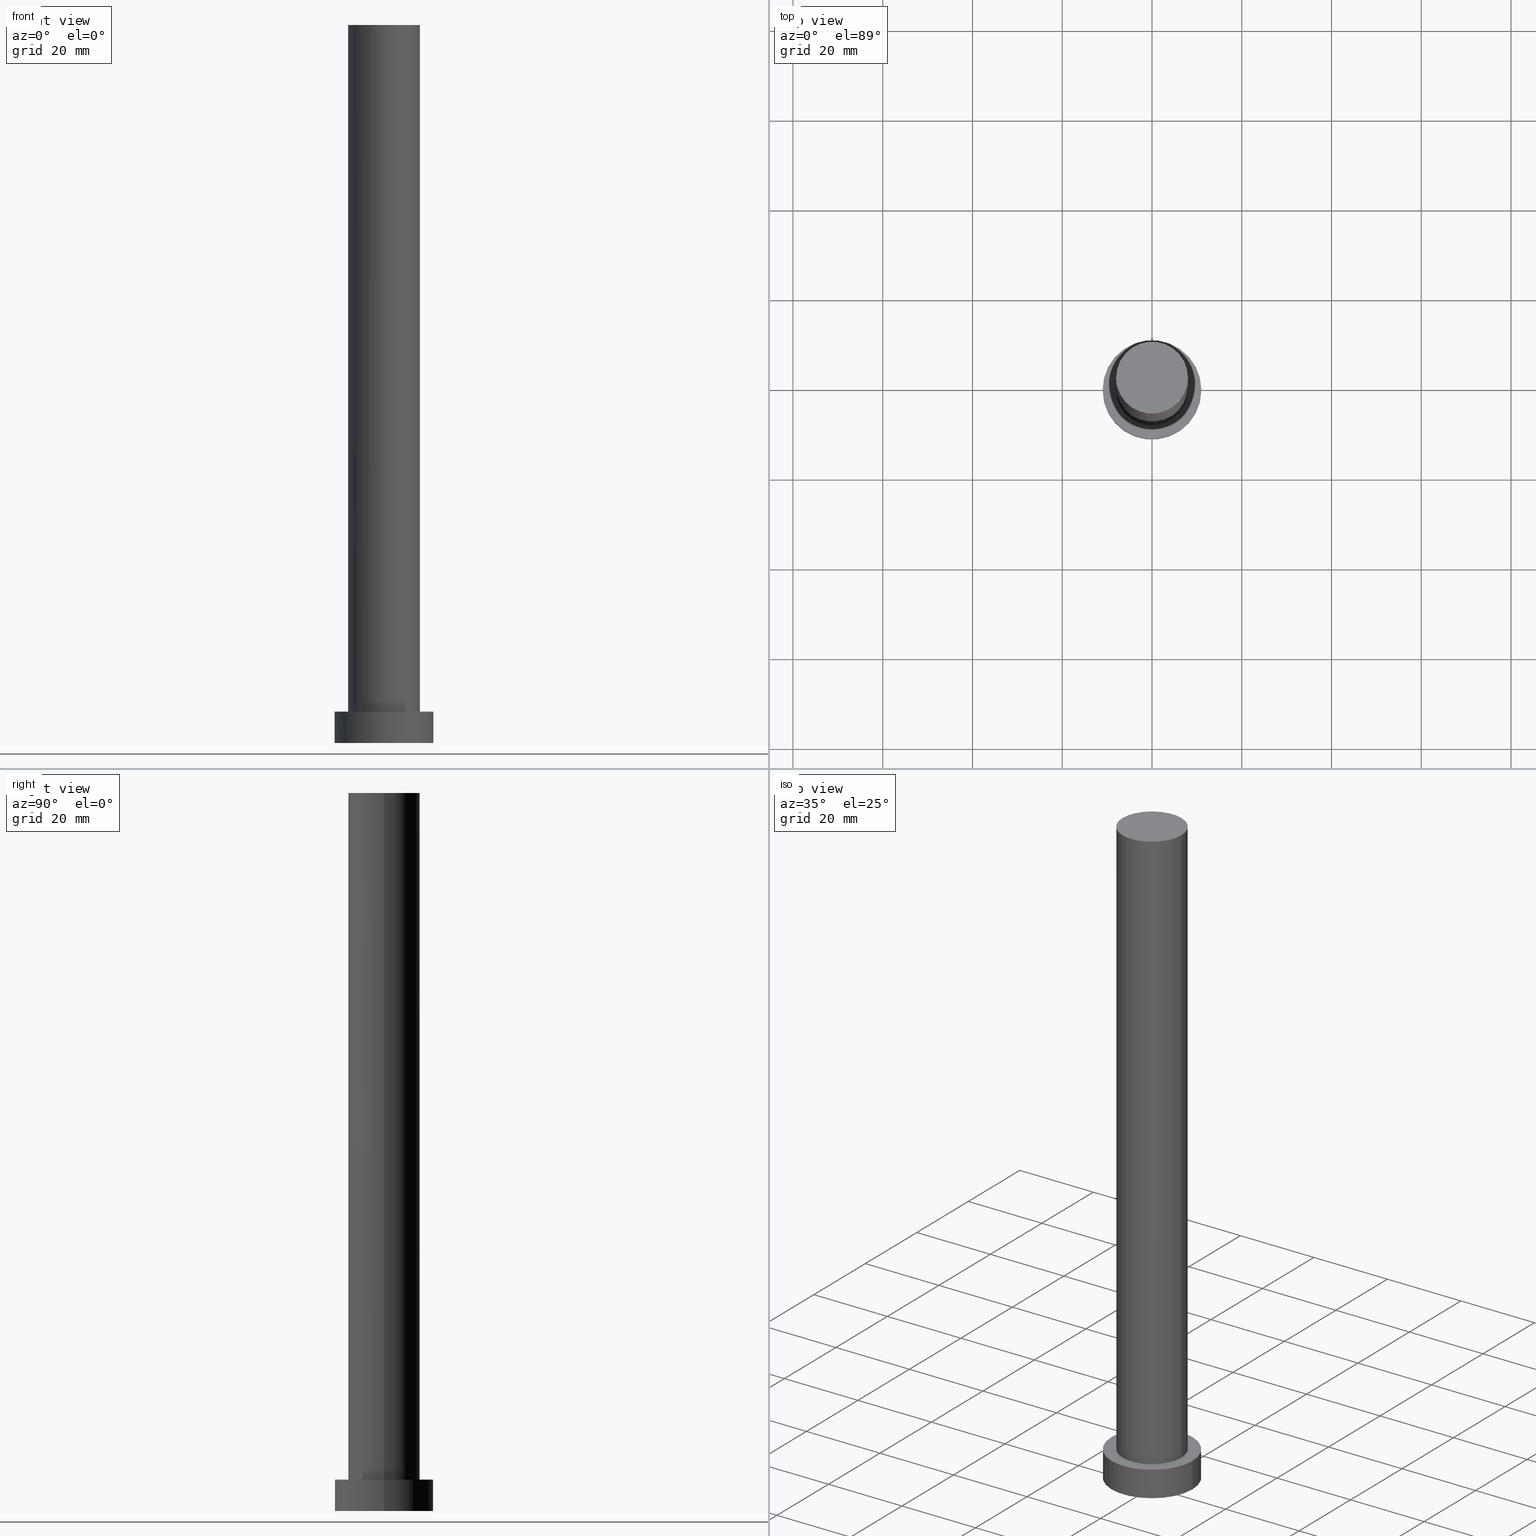
[diagram: canonical four-view strip — front | top / right | iso, engineering-drawing reading convention]
A machine part, canonical four-view strip (front | top / right | iso — engineering-drawing reading convention). The complete STEP part file that produces these views, byte-faithful:
ISO-10303-21;
HEADER;
FILE_DESCRIPTION (( 'STEP AP203' ),
    '1' );
FILE_NAME ('c0d8.STEP',
    '2023-02-13T09:47:08',
    ( '' ),
    ( '' ),
    'SwSTEP 2.0',
    'SolidWorks 2019',
    '' );
FILE_SCHEMA (( 'CONFIG_CONTROL_DESIGN' ));
ENDSEC;

DATA;
#1 = FACE_OUTER_BOUND ( 'NONE', #85, .T. ) ;
#2 = SHAPE_DEFINITION_REPRESENTATION ( #31, #119 ) ;
#3 = CC_DESIGN_PERSON_AND_ORGANIZATION_ASSIGNMENT ( #233, #58, ( #149 ) ) ;
#4 = PERSON ( 'NEUR�EN�', 'NEUR�EN�', 'NEUR�EN�', ('NEUR�EN�'), ('NEUR�EN�'), ('NEUR�EN�') ) ;
#5 = EDGE_LOOP ( 'NONE', ( #187, #24, #240, #76 ) ) ;
#6 = FACE_BOUND ( 'NONE', #107, .T. ) ;
#7 = DIRECTION ( 'NONE',  ( 1.000000000000000000, 0.000000000000000000, -0.000000000000000000 ) ) ;
#8 = PERSON_AND_ORGANIZATION ( #4, #137 ) ;
#9 = ORIENTED_EDGE ( 'NONE', *, *, #139, .F. ) ;
#10 = CYLINDRICAL_SURFACE ( 'NONE', #83, 8.000000000000000000 ) ;
#11 = DIRECTION ( 'NONE',  ( 1.000000000000000000, 0.000000000000000000, 0.000000000000000000 ) ) ;
#12 = CARTESIAN_POINT ( 'NONE',  ( 0.000000000000000000, 0.000000000000000000, 160.0000000000000000 ) ) ;
#13 =( NAMED_UNIT ( * ) SI_UNIT ( $, .STERADIAN. ) SOLID_ANGLE_UNIT ( ) );
#14 = CARTESIAN_POINT ( 'NONE',  ( -11.00000000000000000, 0.000000000000000000, 7.000000000000000000 ) ) ;
#15 = CC_DESIGN_APPROVAL ( #172, ( #121 ) ) ;
#16 = PERSON_AND_ORGANIZATION ( #4, #137 ) ;
#17 = DIRECTION ( 'NONE',  ( 0.000000000000000000, 0.000000000000000000, 1.000000000000000000 ) ) ;
#18 = AXIS2_PLACEMENT_3D ( 'NONE', #237, #255, #80 ) ;
#19 = PERSON_AND_ORGANIZATION ( #4, #137 ) ;
#20 = EDGE_CURVE ( 'NONE', #250, #86, #29, .T. ) ;
#21 = VERTEX_POINT ( 'NONE', #93 ) ;
#22 = ORIENTED_EDGE ( 'NONE', *, *, #142, .T. ) ;
#23 = APPROVAL_PERSON_ORGANIZATION ( #33, #221, #170 ) ;
#24 = ORIENTED_EDGE ( 'NONE', *, *, #82, .T. ) ;
#25 = CARTESIAN_POINT ( 'NONE',  ( 0.000000000000000000, 0.000000000000000000, 160.0000000000000000 ) ) ;
#26 = PERSON_AND_ORGANIZATION ( #4, #137 ) ;
#27 = ORIENTED_EDGE ( 'NONE', *, *, #182, .T. ) ;
#28 = ADVANCED_FACE ( 'NONE', ( #132 ), #53, .F. ) ;
#29 = CIRCLE ( 'NONE', #163, 8.000000000000000000 ) ;
#30 = DIRECTION ( 'NONE',  ( 1.000000000000000000, 0.000000000000000000, 0.000000000000000000 ) ) ;
#31 = PRODUCT_DEFINITION_SHAPE ( 'NONE', 'NONE',  #149 ) ;
#32 = VERTEX_POINT ( 'NONE', #69 ) ;
#33 = PERSON_AND_ORGANIZATION ( #4, #137 ) ;
#34 = DIRECTION ( 'NONE',  ( 1.000000000000000000, 0.000000000000000000, 0.000000000000000000 ) ) ;
#35 = EDGE_CURVE ( 'NONE', #199, #21, #222, .T. ) ;
#36 = CARTESIAN_POINT ( 'NONE',  ( 8.000000000000000000, 9.797174393178825657E-16, 160.0000000000000000 ) ) ;
#37 = DIRECTION ( 'NONE',  ( -0.000000000000000000, -0.000000000000000000, -1.000000000000000000 ) ) ;
#38 = VECTOR ( 'NONE', #175, 1000.000000000000000 ) ;
#39 = DATE_TIME_ROLE ( 'classification_date' ) ;
#40 = EDGE_CURVE ( 'NONE', #21, #199, #245, .T. ) ;
#41 = AXIS2_PLACEMENT_3D ( 'NONE', #188, #174, #134 ) ;
#42 = APPROVAL_ROLE ( '' ) ;
#43 = APPROVAL ( #192, 'NEUR�EN�' ) ;
#44 = AXIS2_PLACEMENT_3D ( 'NONE', #108, #229, #212 ) ;
#45 = CIRCLE ( 'NONE', #104, 8.000000000000000000 ) ;
#46 = ADVANCED_FACE ( 'NONE', ( #74 ), #10, .T. ) ;
#47 = EDGE_LOOP ( 'NONE', ( #225, #106 ) ) ;
#48 = DIRECTION ( 'NONE',  ( -0.000000000000000000, -0.000000000000000000, -1.000000000000000000 ) ) ;
#49 = COORDINATED_UNIVERSAL_TIME_OFFSET ( 1, 0, .AHEAD. ) ;
#50 = CC_DESIGN_PERSON_AND_ORGANIZATION_ASSIGNMENT ( #91, #206, ( #87 ) ) ;
#51 = ORIENTED_EDGE ( 'NONE', *, *, #35, .T. ) ;
#52 = COORDINATED_UNIVERSAL_TIME_OFFSET ( 1, 0, .AHEAD. ) ;
#53 = PLANE ( 'NONE',  #200 ) ;
#54 = DIRECTION ( 'NONE',  ( 0.000000000000000000, 0.000000000000000000, 1.000000000000000000 ) ) ;
#55 = DIRECTION ( 'NONE',  ( 1.000000000000000000, 0.000000000000000000, 0.000000000000000000 ) ) ;
#56 = CALENDAR_DATE ( 2023, 13, 2 ) ;
#57 = DIRECTION ( 'NONE',  ( 0.000000000000000000, 0.000000000000000000, 1.000000000000000000 ) ) ;
#58 = PERSON_AND_ORGANIZATION_ROLE ( 'creator' ) ;
#59 = DIRECTION ( 'NONE',  ( 1.000000000000000000, 0.000000000000000000, 0.000000000000000000 ) ) ;
#60 = LINE ( 'NONE', #215, #216 ) ;
#61 = LOCAL_TIME ( 10, 47, 8.000000000000000000, #52 ) ;
#62 = DATE_AND_TIME ( #178, #127 ) ;
#63 = PRODUCT_RELATED_PRODUCT_CATEGORY ( 'detail', '', ( #116 ) ) ;
#64 = CIRCLE ( 'NONE', #18, 11.00000000000000000 ) ;
#65 = VERTEX_POINT ( 'NONE', #207 ) ;
#66 = MANIFOLD_SOLID_BREP ( 'P�idat vysunut�m3', #164 ) ;
#67 = VECTOR ( 'NONE', #48, 1000.000000000000000 ) ;
#68 = ADVANCED_FACE ( 'NONE', ( #6, #185 ), #248, .T. ) ;
#69 = CARTESIAN_POINT ( 'NONE',  ( -11.00000000000000000, 0.000000000000000000, 0.000000000000000000 ) ) ;
#70 = EDGE_LOOP ( 'NONE', ( #161, #209 ) ) ;
#71 = ADVANCED_FACE ( 'NONE', ( #88 ), #191, .T. ) ;
#72 = ORIENTED_EDGE ( 'NONE', *, *, #139, .T. ) ;
#73 = PERSON_AND_ORGANIZATION ( #4, #137 ) ;
#74 = FACE_OUTER_BOUND ( 'NONE', #5, .T. ) ;
#75 =( LENGTH_UNIT ( ) NAMED_UNIT ( * ) SI_UNIT ( .MILLI., .METRE. ) );
#76 = ORIENTED_EDGE ( 'NONE', *, *, #114, .F. ) ;
#77 = CALENDAR_DATE ( 2023, 13, 2 ) ;
#78 = LINE ( 'NONE', #171, #38 ) ;
#79 =( NAMED_UNIT ( * ) PLANE_ANGLE_UNIT ( ) SI_UNIT ( $, .RADIAN. ) );
#80 = DIRECTION ( 'NONE',  ( 1.000000000000000000, 0.000000000000000000, 0.000000000000000000 ) ) ;
#81 = CARTESIAN_POINT ( 'NONE',  ( 11.00000000000000000, 1.347111479062088405E-15, 0.000000000000000000 ) ) ;
#82 = EDGE_CURVE ( 'NONE', #86, #115, #95, .T. ) ;
#83 = AXIS2_PLACEMENT_3D ( 'NONE', #25, #227, #129 ) ;
#84 = DATE_AND_TIME ( #217, #238 ) ;
#85 = EDGE_LOOP ( 'NONE', ( #140, #242, #27, #90 ) ) ;
#86 = VERTEX_POINT ( 'NONE', #36 ) ;
#87 = PRODUCT_DEFINITION_FORMATION_WITH_SPECIFIED_SOURCE ( 'LIBOVOLN�', '', #116, .NOT_KNOWN. ) ;
#88 = FACE_OUTER_BOUND ( 'NONE', #47, .T. ) ;
#89 = ADVANCED_FACE ( 'NONE', ( #1 ), #195, .T. ) ;
#90 = ORIENTED_EDGE ( 'NONE', *, *, #142, .F. ) ;
#91 = PERSON_AND_ORGANIZATION ( #4, #137 ) ;
#92 = APPROVAL_PERSON_ORGANIZATION ( #8, #43, #235 ) ;
#93 = CARTESIAN_POINT ( 'NONE',  ( 11.00000000000000000, 1.347111479062088405E-15, 7.000000000000000000 ) ) ;
#94 = CARTESIAN_POINT ( 'NONE',  ( 0.000000000000000000, 0.000000000000000000, 0.000000000000000000 ) ) ;
#95 = LINE ( 'NONE', #144, #67 ) ;
#96 = APPROVAL_STATUS ( 'not_yet_approved' ) ;
#97 = DESIGN_CONTEXT ( 'detailed design', #102, 'design' ) ;
#98 = DIRECTION ( 'NONE',  ( 0.000000000000000000, 0.000000000000000000, 1.000000000000000000 ) ) ;
#99 = CIRCLE ( 'NONE', #145, 11.00000000000000000 ) ;
#100 = CYLINDRICAL_SURFACE ( 'NONE', #173, 11.00000000000000000 ) ;
#101 = CARTESIAN_POINT ( 'NONE',  ( 0.000000000000000000, 0.000000000000000000, 160.0000000000000000 ) ) ;
#102 = APPLICATION_CONTEXT ( 'configuration controlled 3d designs of mechanical parts and assemblies' ) ;
#103 = LOCAL_TIME ( 10, 47, 8.000000000000000000, #251 ) ;
#104 = AXIS2_PLACEMENT_3D ( 'NONE', #234, #57, #118 ) ;
#105 = EDGE_LOOP ( 'NONE', ( #51, #230 ) ) ;
#106 = ORIENTED_EDGE ( 'NONE', *, *, #196, .T. ) ;
#107 = EDGE_LOOP ( 'NONE', ( #9, #112 ) ) ;
#108 = CARTESIAN_POINT ( 'NONE',  ( 0.000000000000000000, 0.000000000000000000, 7.000000000000000000 ) ) ;
#109 = PERSON_AND_ORGANIZATION_ROLE ( 'design_supplier' ) ;
#110 = ORIENTED_EDGE ( 'NONE', *, *, #114, .T. ) ;
#111 = CARTESIAN_POINT ( 'NONE',  ( -8.000000000000000000, 0.000000000000000000, 160.0000000000000000 ) ) ;
#112 = ORIENTED_EDGE ( 'NONE', *, *, #239, .F. ) ;
#113 = CARTESIAN_POINT ( 'NONE',  ( 0.000000000000000000, 0.000000000000000000, 160.0000000000000000 ) ) ;
#114 = EDGE_CURVE ( 'NONE', #250, #65, #78, .T. ) ;
#115 = VERTEX_POINT ( 'NONE', #176 ) ;
#116 = PRODUCT ( 'c0d8', 'c0d8', '', ( #249 ) ) ;
#117 = CYLINDRICAL_SURFACE ( 'NONE', #179, 8.000000000000000000 ) ;
#118 = DIRECTION ( 'NONE',  ( 1.000000000000000000, 0.000000000000000000, 0.000000000000000000 ) ) ;
#119 = ADVANCED_BREP_SHAPE_REPRESENTATION ( 'c0d8', ( #66, #220 ), #253 ) ;
#120 = CARTESIAN_POINT ( 'NONE',  ( 0.000000000000000000, 0.000000000000000000, 0.000000000000000000 ) ) ;
#121 = SECURITY_CLASSIFICATION ( '', '', #186 ) ;
#122 = LOCAL_TIME ( 10, 47, 8.000000000000000000, #49 ) ;
#123 = APPROVAL_PERSON_ORGANIZATION ( #19, #172, #42 ) ;
#124 = CC_DESIGN_PERSON_AND_ORGANIZATION_ASSIGNMENT ( #26, #109, ( #87 ) ) ;
#125 = CC_DESIGN_DATE_AND_TIME_ASSIGNMENT ( #84, #39, ( #121 ) ) ;
#126 = EDGE_LOOP ( 'NONE', ( #165, #181, #22, #169 ) ) ;
#127 = LOCAL_TIME ( 10, 47, 8.000000000000000000, #177 ) ;
#128 = APPROVAL_DATE_TIME ( #146, #43 ) ;
#129 = DIRECTION ( 'NONE',  ( -1.000000000000000000, 0.000000000000000000, 0.000000000000000000 ) ) ;
#130 = DIRECTION ( 'NONE',  ( -0.000000000000000000, -0.000000000000000000, -1.000000000000000000 ) ) ;
#131 = ORIENTED_EDGE ( 'NONE', *, *, #82, .F. ) ;
#132 = FACE_OUTER_BOUND ( 'NONE', #70, .T. ) ;
#133 = DIRECTION ( 'NONE',  ( -0.000000000000000000, -0.000000000000000000, -1.000000000000000000 ) ) ;
#134 = DIRECTION ( 'NONE',  ( 1.000000000000000000, 0.000000000000000000, 0.000000000000000000 ) ) ;
#135 = DIRECTION ( 'NONE',  ( -0.000000000000000000, -0.000000000000000000, -1.000000000000000000 ) ) ;
#136 = COORDINATED_UNIVERSAL_TIME_OFFSET ( 1, 0, .AHEAD. ) ;
#137 = ORGANIZATION ( 'NEUR�EN�', 'NEUR�EN�', '' ) ;
#138 = FACE_OUTER_BOUND ( 'NONE', #126, .T. ) ;
#139 = EDGE_CURVE ( 'NONE', #65, #115, #45, .T. ) ;
#140 = ORIENTED_EDGE ( 'NONE', *, *, #40, .F. ) ;
#141 = AXIS2_PLACEMENT_3D ( 'NONE', #204, #98, #162 ) ;
#142 = EDGE_CURVE ( 'NONE', #199, #32, #155, .T. ) ;
#143 = EDGE_LOOP ( 'NONE', ( #131, #243, #110, #72 ) ) ;
#144 = CARTESIAN_POINT ( 'NONE',  ( 8.000000000000000000, 9.797174393178825657E-16, 160.0000000000000000 ) ) ;
#145 = AXIS2_PLACEMENT_3D ( 'NONE', #120, #17, #30 ) ;
#146 = DATE_AND_TIME ( #244, #61 ) ;
#147 = DIRECTION ( 'NONE',  ( 0.000000000000000000, 0.000000000000000000, 1.000000000000000000 ) ) ;
#148 = APPLICATION_PROTOCOL_DEFINITION ( 'international standard', 'config_control_design', 1994, #201 ) ;
#149 = PRODUCT_DEFINITION ( 'NEZN�M�', '', #87, #97 ) ;
#150 = VERTEX_POINT ( 'NONE', #81 ) ;
#151 = DIRECTION ( 'NONE',  ( 0.000000000000000000, 0.000000000000000000, 1.000000000000000000 ) ) ;
#152 = AXIS2_PLACEMENT_3D ( 'NONE', #223, #151, #34 ) ;
#153 = DATE_AND_TIME ( #77, #103 ) ;
#154 = UNCERTAINTY_MEASURE_WITH_UNIT (LENGTH_MEASURE( 1.000000000000000082E-05 ), #75, 'distance_accuracy_value', 'NONE');
#155 = LINE ( 'NONE', #14, #183 ) ;
#156 = DATE_AND_TIME ( #56, #122 ) ;
#157 = DIRECTION ( 'NONE',  ( 0.000000000000000000, 0.000000000000000000, 1.000000000000000000 ) ) ;
#158 = CARTESIAN_POINT ( 'NONE',  ( 0.000000000000000000, 0.000000000000000000, 7.000000000000000000 ) ) ;
#159 = CIRCLE ( 'NONE', #41, 8.000000000000000000 ) ;
#160 = ADVANCED_FACE ( 'NONE', ( #138 ), #100, .T. ) ;
#161 = ORIENTED_EDGE ( 'NONE', *, *, #224, .F. ) ;
#162 = DIRECTION ( 'NONE',  ( 1.000000000000000000, 0.000000000000000000, -0.000000000000000000 ) ) ;
#163 = AXIS2_PLACEMENT_3D ( 'NONE', #12, #247, #55 ) ;
#164 = CLOSED_SHELL ( 'NONE', ( #46, #89, #160, #68, #28, #232, #71 ) ) ;
#165 = ORIENTED_EDGE ( 'NONE', *, *, #202, .F. ) ;
#166 = CC_DESIGN_APPROVAL ( #43, ( #87 ) ) ;
#167 = CC_DESIGN_PERSON_AND_ORGANIZATION_ASSIGNMENT ( #73, #228, ( #121 ) ) ;
#168 = DIRECTION ( 'NONE',  ( 0.000000000000000000, 0.000000000000000000, 1.000000000000000000 ) ) ;
#169 = ORIENTED_EDGE ( 'NONE', *, *, #224, .T. ) ;
#170 = APPROVAL_ROLE ( '' ) ;
#171 = CARTESIAN_POINT ( 'NONE',  ( -8.000000000000000000, 0.000000000000000000, 160.0000000000000000 ) ) ;
#172 = APPROVAL ( #197, 'NEUR�EN�' ) ;
#173 = AXIS2_PLACEMENT_3D ( 'NONE', #158, #37, #252 ) ;
#174 = DIRECTION ( 'NONE',  ( 0.000000000000000000, 0.000000000000000000, 1.000000000000000000 ) ) ;
#175 = DIRECTION ( 'NONE',  ( -0.000000000000000000, -0.000000000000000000, -1.000000000000000000 ) ) ;
#176 = CARTESIAN_POINT ( 'NONE',  ( 8.000000000000000000, 9.797174393178825657E-16, 7.000000000000000000 ) ) ;
#177 = COORDINATED_UNIVERSAL_TIME_OFFSET ( 1, 0, .AHEAD. ) ;
#178 = CALENDAR_DATE ( 2023, 13, 2 ) ;
#179 = AXIS2_PLACEMENT_3D ( 'NONE', #113, #130, #190 ) ;
#180 = APPROVAL_DATE_TIME ( #62, #172 ) ;
#181 = ORIENTED_EDGE ( 'NONE', *, *, #35, .F. ) ;
#182 = EDGE_CURVE ( 'NONE', #150, #32, #64, .T. ) ;
#183 = VECTOR ( 'NONE', #133, 1000.000000000000000 ) ;
#184 = DIRECTION ( 'NONE',  ( 1.000000000000000000, 0.000000000000000000, 0.000000000000000000 ) ) ;
#185 = FACE_OUTER_BOUND ( 'NONE', #105, .T. ) ;
#186 = SECURITY_CLASSIFICATION_LEVEL ( 'unclassified' ) ;
#187 = ORIENTED_EDGE ( 'NONE', *, *, #196, .F. ) ;
#188 = CARTESIAN_POINT ( 'NONE',  ( 0.000000000000000000, 0.000000000000000000, 7.000000000000000000 ) ) ;
#189 = CARTESIAN_POINT ( 'NONE',  ( 0.000000000000000000, 0.000000000000000000, 7.000000000000000000 ) ) ;
#190 = DIRECTION ( 'NONE',  ( -1.000000000000000000, 0.000000000000000000, 0.000000000000000000 ) ) ;
#191 = PLANE ( 'NONE',  #141 ) ;
#192 = APPROVAL_STATUS ( 'not_yet_approved' ) ;
#193 = CARTESIAN_POINT ( 'NONE',  ( 0.000000000000000000, 0.000000000000000000, 7.000000000000000000 ) ) ;
#194 = APPLICATION_PROTOCOL_DEFINITION ( 'international standard', 'config_control_design', 1994, #102 ) ;
#195 = CYLINDRICAL_SURFACE ( 'NONE', #246, 11.00000000000000000 ) ;
#196 = EDGE_CURVE ( 'NONE', #86, #250, #231, .T. ) ;
#197 = APPROVAL_STATUS ( 'not_yet_approved' ) ;
#198 = CC_DESIGN_PERSON_AND_ORGANIZATION_ASSIGNMENT ( #16, #254, ( #116 ) ) ;
#199 = VERTEX_POINT ( 'NONE', #236 ) ;
#200 = AXIS2_PLACEMENT_3D ( 'NONE', #205, #147, #7 ) ;
#201 = APPLICATION_CONTEXT ( 'configuration controlled 3d designs of mechanical parts and assemblies' ) ;
#202 = EDGE_CURVE ( 'NONE', #21, #150, #60, .T. ) ;
#203 = AXIS2_PLACEMENT_3D ( 'NONE', #101, #157, #59 ) ;
#204 = CARTESIAN_POINT ( 'NONE',  ( 0.000000000000000000, 0.000000000000000000, 160.0000000000000000 ) ) ;
#205 = CARTESIAN_POINT ( 'NONE',  ( 0.000000000000000000, 0.000000000000000000, 0.000000000000000000 ) ) ;
#206 = PERSON_AND_ORGANIZATION_ROLE ( 'creator' ) ;
#207 = CARTESIAN_POINT ( 'NONE',  ( -8.000000000000000000, 0.000000000000000000, 7.000000000000000000 ) ) ;
#208 = AXIS2_PLACEMENT_3D ( 'NONE', #189, #168, #184 ) ;
#209 = ORIENTED_EDGE ( 'NONE', *, *, #182, .F. ) ;
#210 = CC_DESIGN_APPROVAL ( #221, ( #149 ) ) ;
#211 = FACE_OUTER_BOUND ( 'NONE', #143, .T. ) ;
#212 = DIRECTION ( 'NONE',  ( 1.000000000000000000, 0.000000000000000000, -0.000000000000000000 ) ) ;
#213 = DATE_TIME_ROLE ( 'creation_date' ) ;
#214 = DIRECTION ( 'NONE',  ( -1.000000000000000000, 0.000000000000000000, 0.000000000000000000 ) ) ;
#215 = CARTESIAN_POINT ( 'NONE',  ( 11.00000000000000000, 1.347111479062088405E-15, 7.000000000000000000 ) ) ;
#216 = VECTOR ( 'NONE', #135, 1000.000000000000000 ) ;
#217 = CALENDAR_DATE ( 2023, 13, 2 ) ;
#218 = DIRECTION ( 'NONE',  ( -0.000000000000000000, -0.000000000000000000, -1.000000000000000000 ) ) ;
#219 = CC_DESIGN_DATE_AND_TIME_ASSIGNMENT ( #156, #213, ( #149 ) ) ;
#220 = AXIS2_PLACEMENT_3D ( 'NONE', #94, #54, #11 ) ;
#221 = APPROVAL ( #96, 'NEUR�EN�' ) ;
#222 = CIRCLE ( 'NONE', #208, 11.00000000000000000 ) ;
#223 = CARTESIAN_POINT ( 'NONE',  ( 0.000000000000000000, 0.000000000000000000, 7.000000000000000000 ) ) ;
#224 = EDGE_CURVE ( 'NONE', #32, #150, #99, .T. ) ;
#225 = ORIENTED_EDGE ( 'NONE', *, *, #20, .T. ) ;
#226 = APPROVAL_DATE_TIME ( #153, #221 ) ;
#227 = DIRECTION ( 'NONE',  ( -0.000000000000000000, -0.000000000000000000, -1.000000000000000000 ) ) ;
#228 = PERSON_AND_ORGANIZATION_ROLE ( 'classification_officer' ) ;
#229 = DIRECTION ( 'NONE',  ( 0.000000000000000000, 0.000000000000000000, 1.000000000000000000 ) ) ;
#230 = ORIENTED_EDGE ( 'NONE', *, *, #40, .T. ) ;
#231 = CIRCLE ( 'NONE', #203, 8.000000000000000000 ) ;
#232 = ADVANCED_FACE ( 'NONE', ( #211 ), #117, .T. ) ;
#233 = PERSON_AND_ORGANIZATION ( #4, #137 ) ;
#234 = CARTESIAN_POINT ( 'NONE',  ( 0.000000000000000000, 0.000000000000000000, 7.000000000000000000 ) ) ;
#235 = APPROVAL_ROLE ( '' ) ;
#236 = CARTESIAN_POINT ( 'NONE',  ( -11.00000000000000000, 0.000000000000000000, 7.000000000000000000 ) ) ;
#237 = CARTESIAN_POINT ( 'NONE',  ( 0.000000000000000000, 0.000000000000000000, 0.000000000000000000 ) ) ;
#238 = LOCAL_TIME ( 10, 47, 8.000000000000000000, #136 ) ;
#239 = EDGE_CURVE ( 'NONE', #115, #65, #159, .T. ) ;
#240 = ORIENTED_EDGE ( 'NONE', *, *, #239, .T. ) ;
#241 = CC_DESIGN_SECURITY_CLASSIFICATION ( #121, ( #87 ) ) ;
#242 = ORIENTED_EDGE ( 'NONE', *, *, #202, .T. ) ;
#243 = ORIENTED_EDGE ( 'NONE', *, *, #20, .F. ) ;
#244 = CALENDAR_DATE ( 2023, 13, 2 ) ;
#245 = CIRCLE ( 'NONE', #152, 11.00000000000000000 ) ;
#246 = AXIS2_PLACEMENT_3D ( 'NONE', #193, #218, #214 ) ;
#247 = DIRECTION ( 'NONE',  ( 0.000000000000000000, 0.000000000000000000, 1.000000000000000000 ) ) ;
#248 = PLANE ( 'NONE',  #44 ) ;
#249 = MECHANICAL_CONTEXT ( 'NONE', #201, 'mechanical' ) ;
#250 = VERTEX_POINT ( 'NONE', #111 ) ;
#251 = COORDINATED_UNIVERSAL_TIME_OFFSET ( 1, 0, .AHEAD. ) ;
#252 = DIRECTION ( 'NONE',  ( -1.000000000000000000, 0.000000000000000000, 0.000000000000000000 ) ) ;
#253 =( GEOMETRIC_REPRESENTATION_CONTEXT ( 3 ) GLOBAL_UNCERTAINTY_ASSIGNED_CONTEXT ( ( #154 ) ) GLOBAL_UNIT_ASSIGNED_CONTEXT ( ( #75, #79, #13 ) ) REPRESENTATION_CONTEXT ( 'NONE', 'WORKASPACE' ) );
#254 = PERSON_AND_ORGANIZATION_ROLE ( 'design_owner' ) ;
#255 = DIRECTION ( 'NONE',  ( 0.000000000000000000, 0.000000000000000000, 1.000000000000000000 ) ) ;
ENDSEC;
END-ISO-10303-21;
